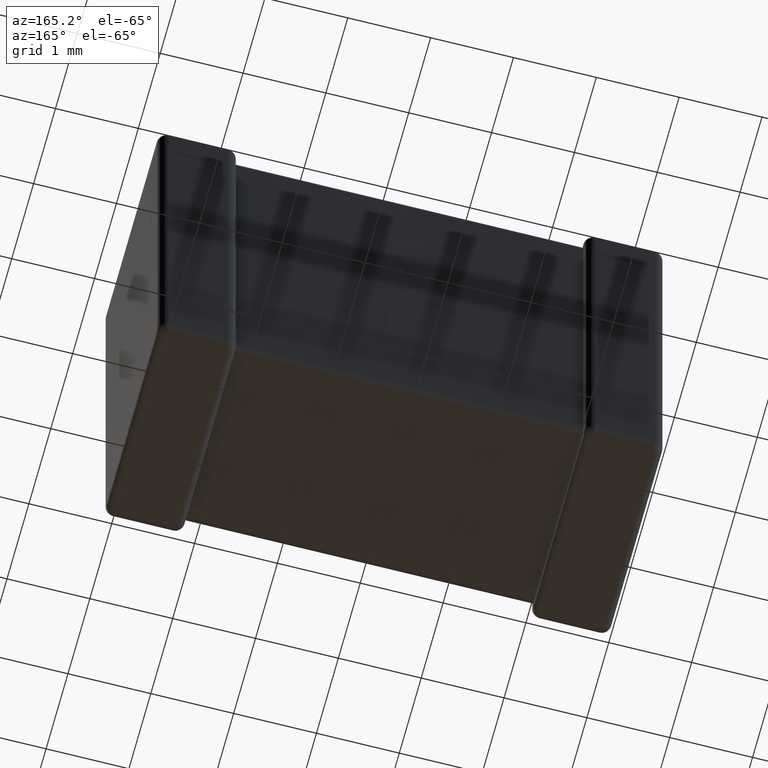
[diagram: clean part render]
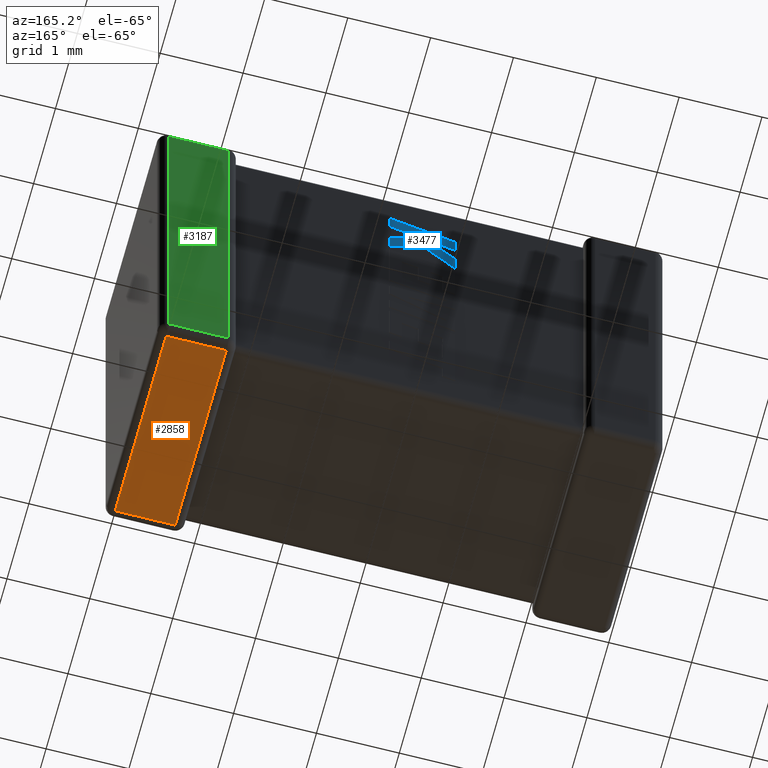
[diagram: same view with three faces highlighted in distinct colors, each labeled with its STEP entity id]
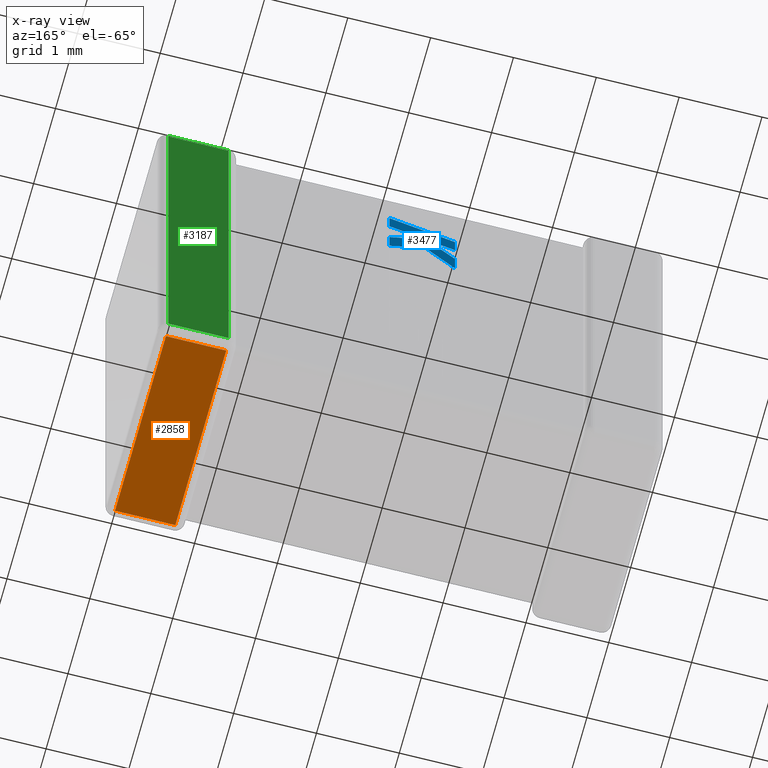
[diagram: x-ray of the same camera — body ghosted, the three highlighted faces saturated]
A machine part, auxiliary view with three faces highlighted in distinct colors.
The next image is the same camera in x-ray (body ghosted, the three faces saturated) — at least one of them is partly hidden behind the body in this view.
Their STEP definitions:

[orange] entity #2858 — the highlighted planar face has unit normal (0, 0, 1).
#20 = ORIENTED_EDGE ( 'NONE', *, *, #2842, .T. ) ;
#205 = DIRECTION ( 'NONE',  ( 0.000000000000000000, 0.000000000000000000, 1.000000000000000000 ) ) ;
#536 = CARTESIAN_POINT ( 'NONE',  ( 5.262319999999999887, 0.000000000000000000, -5.400000000000000355 ) ) ;
#557 = DIRECTION ( 'NONE',  ( 1.000000000000000000, -0.000000000000000000, -0.000000000000000000 ) ) ;
#605 = CARTESIAN_POINT ( 'NONE',  ( 6.100000000000000533, 2.437679999999999847, -5.400000000000000355 ) ) ;
#864 = PLANE ( 'NONE',  #4544 ) ;
#882 = FACE_OUTER_BOUND ( 'NONE', #4506, .T. ) ;
#911 = VECTOR ( 'NONE', #2968, 1000.000000000000000 ) ;
#916 = LINE ( 'NONE', #536, #4296 ) ;
#1159 = VECTOR ( 'NONE', #557, 1000.000000000000000 ) ;
#1246 = EDGE_CURVE ( 'NONE', #3242, #4305, #916, .T. ) ;
#1314 = DIRECTION ( 'NONE',  ( 0.000000000000000000, 1.000000000000000000, 0.000000000000000000 ) ) ;
#1500 = EDGE_CURVE ( 'NONE', #3886, #2138, #4391, .T. ) ;
#1832 = CARTESIAN_POINT ( 'NONE',  ( 5.987680000000000113, 0.1123200000000000032, -5.400000000000000355 ) ) ;
#2138 = VERTEX_POINT ( 'NONE', #1832 ) ;
#2149 = CARTESIAN_POINT ( 'NONE',  ( 5.262319999999999887, 2.437679999999999847, -5.400000000000000355 ) ) ;
#2275 = ORIENTED_EDGE ( 'NONE', *, *, #1500, .T. ) ;
#2326 = CARTESIAN_POINT ( 'NONE',  ( 6.100000000000000533, 0.000000000000000000, -5.400000000000000355 ) ) ;
#2842 = EDGE_CURVE ( 'NONE', #2138, #3242, #3389, .T. ) ;
#2858 = ADVANCED_FACE ( 'NONE', ( #882 ), #864, .F. ) ;
#2918 = ORIENTED_EDGE ( 'NONE', *, *, #4402, .T. ) ;
#2949 = CARTESIAN_POINT ( 'NONE',  ( 5.987680000000000113, 0.000000000000000000, -5.400000000000000355 ) ) ;
#2968 = DIRECTION ( 'NONE',  ( -1.000000000000000000, -0.000000000000000000, 0.000000000000000000 ) ) ;
#3242 = VERTEX_POINT ( 'NONE', #3519 ) ;
#3299 = DIRECTION ( 'NONE',  ( -0.000000000000000000, -1.000000000000000000, 0.000000000000000000 ) ) ;
#3345 = CARTESIAN_POINT ( 'NONE',  ( 6.100000000000000533, 0.1123200000000000032, -5.400000000000000355 ) ) ;
#3389 = LINE ( 'NONE', #3345, #911 ) ;
#3519 = CARTESIAN_POINT ( 'NONE',  ( 5.262319999999999887, 0.1123200000000000032, -5.400000000000000355 ) ) ;
#3576 = DIRECTION ( 'NONE',  ( 1.000000000000000000, 0.000000000000000000, -0.000000000000000000 ) ) ;
#3671 = VECTOR ( 'NONE', #3299, 1000.000000000000000 ) ;
#3825 = LINE ( 'NONE', #605, #1159 ) ;
#3886 = VERTEX_POINT ( 'NONE', #4533 ) ;
#4253 = ORIENTED_EDGE ( 'NONE', *, *, #1246, .T. ) ;
#4296 = VECTOR ( 'NONE', #1314, 1000.000000000000000 ) ;
#4305 = VERTEX_POINT ( 'NONE', #2149 ) ;
#4391 = LINE ( 'NONE', #2949, #3671 ) ;
#4402 = EDGE_CURVE ( 'NONE', #4305, #3886, #3825, .T. ) ;
#4506 = EDGE_LOOP ( 'NONE', ( #20, #4253, #2918, #2275 ) ) ;
#4533 = CARTESIAN_POINT ( 'NONE',  ( 5.987680000000000113, 2.437679999999999847, -5.400000000000000355 ) ) ;
#4544 = AXIS2_PLACEMENT_3D ( 'NONE', #2326, #205, #3576 ) ;

[blue] entity #3477 — the highlighted planar face has unit normal (0, -1, 0).
#64 = CARTESIAN_POINT ( 'NONE',  ( 3.294000000000000039, 2.442679999999999740, -0.6750000000000000444 ) ) ;
#111 = ORIENTED_EDGE ( 'NONE', *, *, #570, .T. ) ;
#235 = DIRECTION ( 'NONE',  ( 0.7083077534944018927, 0.000000000000000000, 0.7059037656364454127 ) ) ;
#268 = VERTEX_POINT ( 'NONE', #2498 ) ;
#294 = DIRECTION ( 'NONE',  ( -0.6995643972270459976, 0.000000000000000000, -0.7145695586381775044 ) ) ;
#296 = LINE ( 'NONE', #1158, #4537 ) ;
#464 = VERTEX_POINT ( 'NONE', #2711 ) ;
#544 = LINE ( 'NONE', #3400, #993 ) ;
#570 = EDGE_CURVE ( 'NONE', #268, #2984, #4312, .T. ) ;
#689 = VECTOR ( 'NONE', #3558, 1000.000000000000000 ) ;
#744 = LINE ( 'NONE', #4363, #2120 ) ;
#759 = CARTESIAN_POINT ( 'NONE',  ( 2.500140458105373664, 2.442679999999999740, -1.369523908665738698 ) ) ;
#785 = DIRECTION ( 'NONE',  ( -0.9612934544747571142, 0.000000000000000000, -0.2755265765475047868 ) ) ;
#829 = ORIENTED_EDGE ( 'NONE', *, *, #2965, .T. ) ;
#835 = DIRECTION ( 'NONE',  ( 0.000000000000000000, 0.000000000000000000, -1.000000000000000000 ) ) ;
#872 = VERTEX_POINT ( 'NONE', #3767 ) ;
#909 = DIRECTION ( 'NONE',  ( 0.9610992334315860974, 0.000000000000000000, 0.2762033010252007981 ) ) ;
#993 = VECTOR ( 'NONE', #4551, 1000.000000000000000 ) ;
#1022 = VERTEX_POINT ( 'NONE', #1463 ) ;
#1080 = DIRECTION ( 'NONE',  ( 0.000000000000000000, 0.000000000000000000, 1.000000000000000000 ) ) ;
#1133 = DIRECTION ( 'NONE',  ( -0.9612861490927337993, 0.000000000000000000, -0.2755520632520511715 ) ) ;
#1147 = AXIS2_PLACEMENT_3D ( 'NONE', #1694, #4649, #2107 ) ;
#1148 = EDGE_CURVE ( 'NONE', #2944, #1238, #296, .T. ) ;
#1149 = ORIENTED_EDGE ( 'NONE', *, *, #2583, .T. ) ;
#1158 = CARTESIAN_POINT ( 'NONE',  ( 2.500140458105373664, 2.442679999999999740, -0.9031415054705247414 ) ) ;
#1173 = CARTESIAN_POINT ( 'NONE',  ( 3.294000000000012029, 2.442679999999999740, -1.438848608204118529 ) ) ;
#1234 = CARTESIAN_POINT ( 'NONE',  ( 2.500140458105373664, 2.442679999999999740, -1.129180580096638353 ) ) ;
#1238 = VERTEX_POINT ( 'NONE', #2402 ) ;
#1326 = ORIENTED_EDGE ( 'NONE', *, *, #4592, .T. ) ;
#1348 = ORIENTED_EDGE ( 'NONE', *, *, #1148, .T. ) ;
#1356 = VECTOR ( 'NONE', #294, 1000.000000000000000 ) ;
#1382 = FACE_OUTER_BOUND ( 'NONE', #4630, .T. ) ;
#1457 = EDGE_CURVE ( 'NONE', #4529, #464, #4462, .T. ) ;
#1463 = CARTESIAN_POINT ( 'NONE',  ( 2.862955814443226998, 2.442679999999999740, -1.024283521815165132 ) ) ;
#1578 = DIRECTION ( 'NONE',  ( 0.000000000000000000, 0.000000000000000000, 1.000000000000000000 ) ) ;
#1694 = CARTESIAN_POINT ( 'NONE',  ( -2.033509805128725922, 2.442679999999998852, 0.01221870379636692643 ) ) ;
#1699 = ORIENTED_EDGE ( 'NONE', *, *, #1457, .T. ) ;
#1723 = VECTOR ( 'NONE', #909, 1000.000000000000000 ) ;
#1758 = PLANE ( 'NONE',  #1147 ) ;
#1777 = CARTESIAN_POINT ( 'NONE',  ( 3.294000000000012029, 2.442679999999999740, -0.9007373474036682870 ) ) ;
#1837 = CARTESIAN_POINT ( 'NONE',  ( 3.294000000000012029, 2.442679999999999740, -1.197303200920297073 ) ) ;
#1843 = LINE ( 'NONE', #64, #1723 ) ;
#2073 = CARTESIAN_POINT ( 'NONE',  ( 3.294000000000012029, 2.442679999999999740, -1.197303200920297073 ) ) ;
#2074 = CARTESIAN_POINT ( 'NONE',  ( 2.500140458105373664, 2.442679999999999740, -1.369523908665738698 ) ) ;
#2107 = DIRECTION ( 'NONE',  ( 0.000000000000000000, 0.000000000000000000, -1.000000000000000000 ) ) ;
#2120 = VECTOR ( 'NONE', #1133, 1000.000000000000000 ) ;
#2206 = DIRECTION ( 'NONE',  ( 0.9280290862136693075, 0.000000000000000000, -0.3725077383644825324 ) ) ;
#2370 = CARTESIAN_POINT ( 'NONE',  ( 2.862955814443217228, 2.442679999999999740, -1.260178193614535314 ) ) ;
#2402 = CARTESIAN_POINT ( 'NONE',  ( 2.500140458105373664, 2.442679999999999740, -0.9031415054705247414 ) ) ;
#2472 = EDGE_CURVE ( 'NONE', #2984, #2793, #3096, .T. ) ;
#2498 = CARTESIAN_POINT ( 'NONE',  ( 2.500140458105373664, 2.442679999999999740, -1.630775682670778881 ) ) ;
#2526 = VECTOR ( 'NONE', #835, 1000.000000000000000 ) ;
#2538 = VERTEX_POINT ( 'NONE', #1777 ) ;
#2583 = EDGE_CURVE ( 'NONE', #872, #268, #3111, .T. ) ;
#2609 = LINE ( 'NONE', #3657, #2985 ) ;
#2711 = CARTESIAN_POINT ( 'NONE',  ( 3.294000000000012029, 2.442679999999999740, -1.438848608204118529 ) ) ;
#2731 = LINE ( 'NONE', #2370, #689 ) ;
#2793 = VERTEX_POINT ( 'NONE', #3684 ) ;
#2886 = VERTEX_POINT ( 'NONE', #3823 ) ;
#2913 = LINE ( 'NONE', #1837, #4303 ) ;
#2944 = VERTEX_POINT ( 'NONE', #1234 ) ;
#2946 = ORIENTED_EDGE ( 'NONE', *, *, #3722, .T. ) ;
#2965 = EDGE_CURVE ( 'NONE', #1022, #4529, #2913, .T. ) ;
#2984 = VERTEX_POINT ( 'NONE', #759 ) ;
#2985 = VECTOR ( 'NONE', #785, 1000.000000000000000 ) ;
#3047 = EDGE_CURVE ( 'NONE', #2886, #2538, #544, .T. ) ;
#3096 = LINE ( 'NONE', #3718, #3300 ) ;
#3098 = ORIENTED_EDGE ( 'NONE', *, *, #3047, .T. ) ;
#3111 = LINE ( 'NONE', #3509, #1356 ) ;
#3300 = VECTOR ( 'NONE', #235, 1000.000000000000114 ) ;
#3400 = CARTESIAN_POINT ( 'NONE',  ( 3.294000000000012029, 2.442679999999999740, -0.9007373474036682870 ) ) ;
#3428 = VECTOR ( 'NONE', #1080, 1000.000000000000000 ) ;
#3477 = ADVANCED_FACE ( 'NONE', ( #1382 ), #1758, .F. ) ;
#3509 = CARTESIAN_POINT ( 'NONE',  ( 2.500140458105373664, 2.442679999999999740, -1.630775682670778881 ) ) ;
#3558 = DIRECTION ( 'NONE',  ( -0.9237839814038673047, 0.000000000000000000, 0.3829140317376986680 ) ) ;
#3607 = ORIENTED_EDGE ( 'NONE', *, *, #4372, .T. ) ;
#3657 = CARTESIAN_POINT ( 'NONE',  ( 2.862955814443226998, 2.442679999999999740, -1.024283521815165132 ) ) ;
#3684 = CARTESIAN_POINT ( 'NONE',  ( 2.838672858876863270, 2.442679999999999740, -1.032140482724699604 ) ) ;
#3718 = CARTESIAN_POINT ( 'NONE',  ( 2.838672858876863270, 2.442679999999999740, -1.032140482724699604 ) ) ;
#3722 = EDGE_CURVE ( 'NONE', #464, #872, #2731, .T. ) ;
#3767 = CARTESIAN_POINT ( 'NONE',  ( 2.862955814443217228, 2.442679999999999740, -1.260178193614535314 ) ) ;
#3817 = ORIENTED_EDGE ( 'NONE', *, *, #4662, .T. ) ;
#3823 = CARTESIAN_POINT ( 'NONE',  ( 3.294000000000000039, 2.442679999999999740, -0.6750000000000000444 ) ) ;
#4302 = ORIENTED_EDGE ( 'NONE', *, *, #2472, .T. ) ;
#4303 = VECTOR ( 'NONE', #2206, 1000.000000000000114 ) ;
#4312 = LINE ( 'NONE', #2074, #3428 ) ;
#4363 = CARTESIAN_POINT ( 'NONE',  ( 2.500140458105373664, 2.442679999999999740, -1.129180580096638353 ) ) ;
#4372 = EDGE_CURVE ( 'NONE', #2793, #2944, #744, .T. ) ;
#4462 = LINE ( 'NONE', #1173, #2526 ) ;
#4529 = VERTEX_POINT ( 'NONE', #2073 ) ;
#4537 = VECTOR ( 'NONE', #1578, 1000.000000000000000 ) ;
#4551 = DIRECTION ( 'NONE',  ( 5.943634068010692500E-14, 0.000000000000000000, -1.000000000000000000 ) ) ;
#4592 = EDGE_CURVE ( 'NONE', #2538, #1022, #2609, .T. ) ;
#4630 = EDGE_LOOP ( 'NONE', ( #3817, #3098, #1326, #829, #1699, #2946, #1149, #111, #4302, #3607, #1348 ) ) ;
#4649 = DIRECTION ( 'NONE',  ( 0.000000000000000000, -1.000000000000000000, 0.000000000000000000 ) ) ;
#4662 = EDGE_CURVE ( 'NONE', #1238, #2886, #1843, .T. ) ;

[green] entity #3187 — the highlighted planar face has unit normal (0, -1, 0).
#279 = PLANE ( 'NONE',  #1737 ) ;
#293 = EDGE_CURVE ( 'NONE', #3294, #975, #745, .T. ) ;
#317 = LINE ( 'NONE', #3513, #774 ) ;
#428 = CARTESIAN_POINT ( 'NONE',  ( 5.987680000000000113, 2.549999999999999822, -0.1123199999999999893 ) ) ;
#486 = ORIENTED_EDGE ( 'NONE', *, *, #4308, .T. ) ;
#745 = LINE ( 'NONE', #4677, #1261 ) ;
#774 = VECTOR ( 'NONE', #1740, 1000.000000000000000 ) ;
#848 = EDGE_CURVE ( 'NONE', #3015, #1526, #2909, .T. ) ;
#871 = CARTESIAN_POINT ( 'NONE',  ( 5.262319999999999887, 2.549999999999999822, -0.1123199999999999893 ) ) ;
#975 = VERTEX_POINT ( 'NONE', #2407 ) ;
#1043 = LINE ( 'NONE', #2162, #1732 ) ;
#1073 = ORIENTED_EDGE ( 'NONE', *, *, #293, .T. ) ;
#1261 = VECTOR ( 'NONE', #4320, 1000.000000000000000 ) ;
#1387 = FACE_OUTER_BOUND ( 'NONE', #2723, .T. ) ;
#1467 = DIRECTION ( 'NONE',  ( -0.000000000000000000, 0.000000000000000000, 1.000000000000000000 ) ) ;
#1473 = ORIENTED_EDGE ( 'NONE', *, *, #848, .T. ) ;
#1526 = VERTEX_POINT ( 'NONE', #428 ) ;
#1732 = VECTOR ( 'NONE', #1467, 1000.000000000000000 ) ;
#1737 = AXIS2_PLACEMENT_3D ( 'NONE', #3570, #2431, #3883 ) ;
#1740 = DIRECTION ( 'NONE',  ( -0.000000000000000000, -0.000000000000000000, -1.000000000000000000 ) ) ;
#2162 = CARTESIAN_POINT ( 'NONE',  ( 5.262319999999999887, 2.549999999999999822, 0.000000000000000000 ) ) ;
#2268 = CARTESIAN_POINT ( 'NONE',  ( 5.987680000000000113, 2.549999999999999822, -5.287679999999999936 ) ) ;
#2407 = CARTESIAN_POINT ( 'NONE',  ( 5.262319999999999887, 2.549999999999999822, -5.287679999999999936 ) ) ;
#2431 = DIRECTION ( 'NONE',  ( 0.000000000000000000, -1.000000000000000000, 0.000000000000000000 ) ) ;
#2578 = ORIENTED_EDGE ( 'NONE', *, *, #2879, .T. ) ;
#2723 = EDGE_LOOP ( 'NONE', ( #1473, #486, #1073, #2578 ) ) ;
#2834 = DIRECTION ( 'NONE',  ( 1.000000000000000000, -0.000000000000000000, -0.000000000000000000 ) ) ;
#2879 = EDGE_CURVE ( 'NONE', #975, #3015, #1043, .T. ) ;
#2909 = LINE ( 'NONE', #4011, #3757 ) ;
#3015 = VERTEX_POINT ( 'NONE', #871 ) ;
#3187 = ADVANCED_FACE ( 'NONE', ( #1387 ), #279, .F. ) ;
#3294 = VERTEX_POINT ( 'NONE', #2268 ) ;
#3513 = CARTESIAN_POINT ( 'NONE',  ( 5.987680000000000113, 2.549999999999999822, 0.000000000000000000 ) ) ;
#3570 = CARTESIAN_POINT ( 'NONE',  ( 6.100000000000000533, 2.549999999999999822, 0.000000000000000000 ) ) ;
#3757 = VECTOR ( 'NONE', #2834, 1000.000000000000000 ) ;
#3883 = DIRECTION ( 'NONE',  ( 0.000000000000000000, -0.000000000000000000, -1.000000000000000000 ) ) ;
#4011 = CARTESIAN_POINT ( 'NONE',  ( 6.100000000000000533, 2.549999999999999822, -0.1123199999999999893 ) ) ;
#4308 = EDGE_CURVE ( 'NONE', #1526, #3294, #317, .T. ) ;
#4320 = DIRECTION ( 'NONE',  ( -1.000000000000000000, 0.000000000000000000, 0.000000000000000000 ) ) ;
#4677 = CARTESIAN_POINT ( 'NONE',  ( 6.100000000000000533, 2.549999999999999822, -5.287679999999999936 ) ) ;